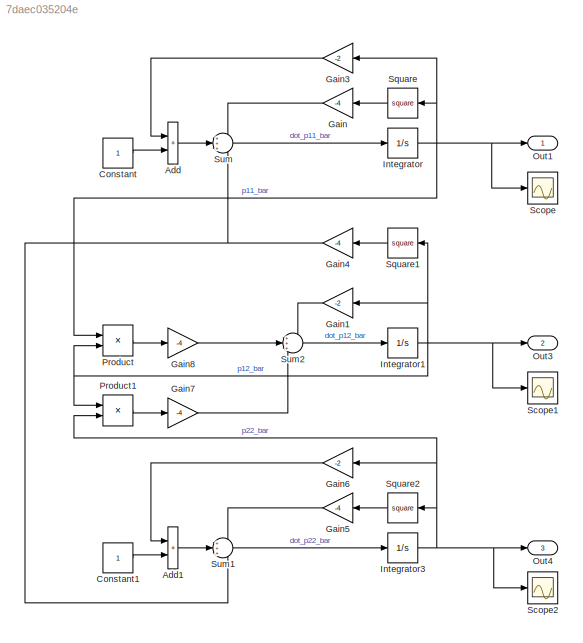
MODEL slx_7daec035204e
KIND model
CONFIG AbsTol = auto
CONFIG EnableMultiTasking = off
CONFIG FixedStep = auto
CONFIG MaxStep = auto
CONFIG MinStep = auto
CONFIG RelTol = 1e-3
CONFIG SampleTimeConstraint = Unconstrained
CONFIG SolverName = VariableStepAuto
CONFIG StartTime = 0.0
CONFIG StopTime = 10
BLOCK [Sum] Add
  IconShape = rectangular
BLOCK [Sum] Add1
  IconShape = rectangular
BLOCK [Constant] Constant
BLOCK [Constant] Constant1
BLOCK [Gain] Gain
  Gain = -4
BLOCK [Gain] Gain1
  Gain = -2
BLOCK [Gain] Gain3
  Gain = -2
BLOCK [Gain] Gain4
  Gain = -4
BLOCK [Gain] Gain5
  Gain = -4
BLOCK [Gain] Gain6
  Gain = -2
BLOCK [Gain] Gain7
  Gain = -4
BLOCK [Gain] Gain8
  Gain = -4
BLOCK [Integrator] Integrator
  InitialCondition = 1
BLOCK [Integrator] Integrator1
BLOCK [Integrator] Integrator3
BLOCK [Outport] Out1
BLOCK [Outport] Out3
  Port = 2
BLOCK [Outport] Out4
  Port = 3
BLOCK [Product] Product
BLOCK [Product] Product1
BLOCK [Scope] Scope
  Floating = off
  NumInputPorts = 1
  ScopeSpecificationString = Simulink.scopes.TimeScopeBlockCfg('CurrentConfiguration', extmgr.ConfigurationSet(extmgr.Configuration('Core','General UI',true),extmgr.Configuration('Core','Source UI',true),extmgr.Configuration('Sources','WiredSimulink',true),extmgr.Configuration('Visuals','Time Domain',true,'SerializedDisplays',{struct('MinYLimReal','-0.03863','MaxYLimReal','0.34764','YLabelReal','','MinYLimMag','0.00000','MaxY...<+1357ch>
BLOCK [Scope] Scope1
  Floating = off
  NumInputPorts = 1
  ScopeSpecificationString = Simulink.scopes.TimeScopeBlockCfg('CurrentConfiguration', extmgr.ConfigurationSet(extmgr.Configuration('Core','General UI',true),extmgr.Configuration('Core','Source UI',true),extmgr.Configuration('Sources','WiredSimulink',true,'DataLoggingVariableName','ScopeData1'),extmgr.Configuration('Visuals','Time Domain',true,'SerializedDisplays',{struct('MinYLimReal','-1.00000','MaxYLimReal','1.00000','YLab...<+1396ch>
BLOCK [Scope] Scope2
  Floating = off
  NumInputPorts = 1
  ScopeSpecificationString = Simulink.scopes.TimeScopeBlockCfg('CurrentConfiguration', extmgr.ConfigurationSet(extmgr.Configuration('Core','General UI',true),extmgr.Configuration('Core','Source UI',true),extmgr.Configuration('Sources','WiredSimulink',true,'DataLoggingVariableName','ScopeData2'),extmgr.Configuration('Visuals','Time Domain',true,'SerializedDisplays',{struct('MinYLimReal','-0.03125','MaxYLimReal','0.28125','YLab...<+1396ch>
BLOCK [Math] Square
  Operator = square
BLOCK [Math] Square1
  Operator = square
BLOCK [Math] Square2
  Operator = square
BLOCK [Sum] Sum
  Inputs = +++
BLOCK [Sum] Sum1
  Inputs = +++
BLOCK [Sum] Sum2
  Inputs = +++
LINE Add1:1 -> Sum1:2
LINE Add:1 -> Sum:2
LINE Constant1:1 -> Add1:2
LINE Constant:1 -> Add:2
LINE Gain1:1 -> Sum2:1
LINE Gain3:1 -> Add:1
NET Gain4:1 -> Sum1:3, Sum:3
LINE Gain5:1 -> Sum1:1
LINE Gain6:1 -> Add1:1
LINE Gain7:1 -> Sum2:3
LINE Gain8:1 -> Sum2:2
LINE Gain:1 -> Sum:1
NET Integrator1:1 -> Gain1:1, Out3:1, Product1:1, Product:2, Scope1:1, Square1:1
NET Integrator3:1 -> Gain6:1, Out4:1, Product1:2, Scope2:1, Square2:1
NET Integrator:1 -> Gain3:1, Out1:1, Product:1, Scope:1, Square:1
LINE Product1:1 -> Gain7:1
LINE Product:1 -> Gain8:1
LINE Square1:1 -> Gain4:1
LINE Square2:1 -> Gain5:1
LINE Square:1 -> Gain:1
LINE Sum1:1 -> Integrator3:1
LINE Sum2:1 -> Integrator1:1
LINE Sum:1 -> Integrator:1
note: NET lines group one-source signal fan-out (src -> all destinations, sorted); 1:1 wires keep LINE
